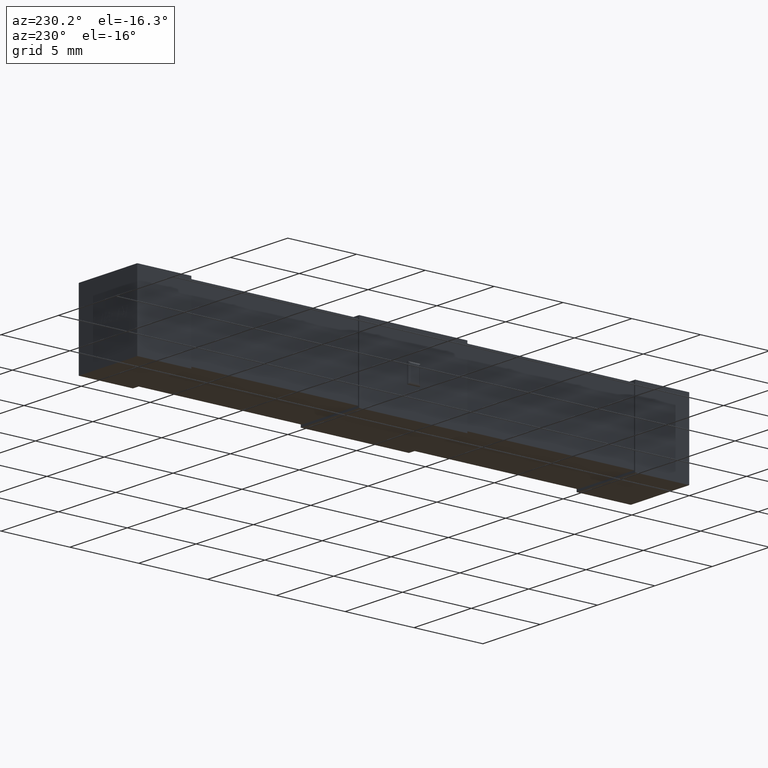
[diagram: clean part render]
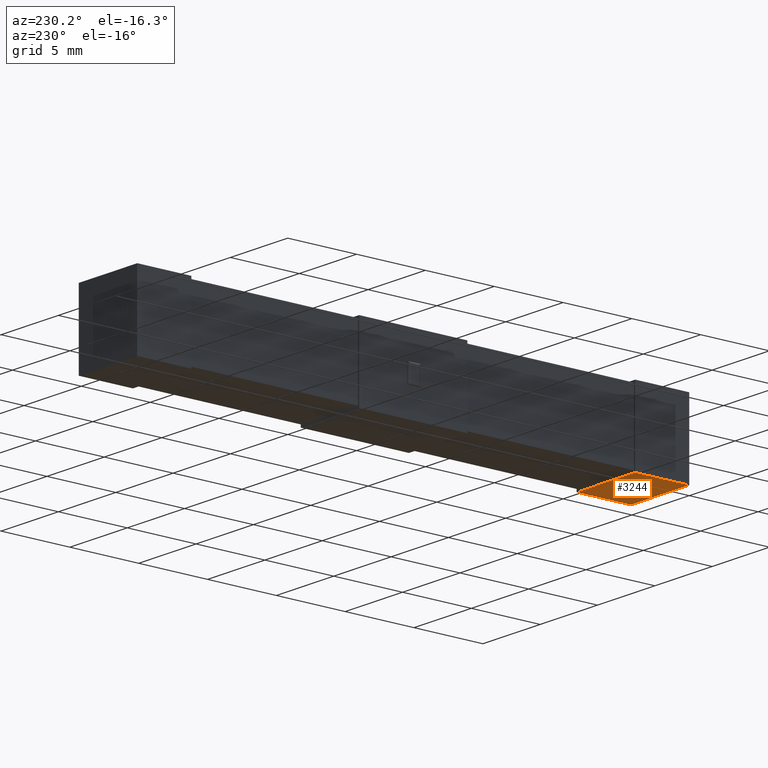
[diagram: same view with one face highlighted and labeled with its STEP entity id]
A machine part, auxiliary view. The second image highlights one B-rep face of the part: STEP entity #3244.
In plain terms, the highlighted planar face has unit normal (0, 0, -1).
Its self-contained STEP definition (entity closure, byte-faithful):
#1 = CARTESIAN_POINT ( 'NONE',  ( 0.000000000000000000, 0.000000000000000000, 0.000000000000000000 ) ) ;
#125 = LINE ( 'NONE', #1921, #2162 ) ;
#127 = ORIENTED_EDGE ( 'NONE', *, *, #664, .F. ) ;
#249 = EDGE_CURVE ( 'NONE', #1657, #2147, #3219, .T. ) ;
#404 = ORIENTED_EDGE ( 'NONE', *, *, #3091, .F. ) ;
#537 = VECTOR ( 'NONE', #2843, 1000.000000000000000 ) ;
#544 = CARTESIAN_POINT ( 'NONE',  ( 5.099999999999996980, 3.929799999999999738, 1.734723475976807094E-15 ) ) ;
#555 = CARTESIAN_POINT ( 'NONE',  ( 5.099999999999999645, 0.000000000000000000, 0.000000000000000000 ) ) ;
#664 = EDGE_CURVE ( 'NONE', #1657, #1699, #2777, .T. ) ;
#891 = DIRECTION ( 'NONE',  ( 1.000000000000000000, 0.000000000000000000, 0.000000000000000000 ) ) ;
#944 = FACE_OUTER_BOUND ( 'NONE', #2159, .T. ) ;
#951 = CARTESIAN_POINT ( 'NONE',  ( 4.429571965451960060E-15, 3.929799999999999738, 1.734723475976807094E-15 ) ) ;
#1051 = CARTESIAN_POINT ( 'NONE',  ( 0.000000000000000000, 0.000000000000000000, 0.000000000000000000 ) ) ;
#1147 = LINE ( 'NONE', #1857, #2020 ) ;
#1260 = AXIS2_PLACEMENT_3D ( 'NONE', #1, #3093, #3128 ) ;
#1357 = DIRECTION ( 'NONE',  ( 1.000000000000000000, 0.000000000000000000, 0.000000000000000000 ) ) ;
#1399 = DIRECTION ( 'NONE',  ( 0.000000000000000000, 1.000000000000000000, 0.000000000000000000 ) ) ;
#1504 = EDGE_CURVE ( 'NONE', #2666, #2147, #125, .T. ) ;
#1657 = VERTEX_POINT ( 'NONE', #951 ) ;
#1699 = VERTEX_POINT ( 'NONE', #1051 ) ;
#1773 = CARTESIAN_POINT ( 'NONE',  ( 0.000000000000000000, 0.000000000000000000, 0.000000000000000000 ) ) ;
#1857 = CARTESIAN_POINT ( 'NONE',  ( 0.000000000000000000, 0.000000000000000000, 0.000000000000000000 ) ) ;
#1921 = CARTESIAN_POINT ( 'NONE',  ( 5.099999999999999645, 0.000000000000000000, 0.000000000000000000 ) ) ;
#1994 = PLANE ( 'NONE',  #1260 ) ;
#2020 = VECTOR ( 'NONE', #1357, 1000.000000000000000 ) ;
#2026 = ORIENTED_EDGE ( 'NONE', *, *, #1504, .F. ) ;
#2067 = VECTOR ( 'NONE', #891, 1000.000000000000000 ) ;
#2147 = VERTEX_POINT ( 'NONE', #544 ) ;
#2159 = EDGE_LOOP ( 'NONE', ( #127, #2419, #2026, #404 ) ) ;
#2162 = VECTOR ( 'NONE', #1399, 1000.000000000000000 ) ;
#2419 = ORIENTED_EDGE ( 'NONE', *, *, #249, .T. ) ;
#2666 = VERTEX_POINT ( 'NONE', #555 ) ;
#2777 = LINE ( 'NONE', #1773, #537 ) ;
#2843 = DIRECTION ( 'NONE',  ( -0.000000000000000000, -1.000000000000000000, -0.000000000000000000 ) ) ;
#2977 = CARTESIAN_POINT ( 'NONE',  ( 4.429571965451960060E-15, 3.929799999999999738, 1.734723475976807094E-15 ) ) ;
#3091 = EDGE_CURVE ( 'NONE', #1699, #2666, #1147, .T. ) ;
#3093 = DIRECTION ( 'NONE',  ( 0.000000000000000000, 0.000000000000000000, -1.000000000000000000 ) ) ;
#3128 = DIRECTION ( 'NONE',  ( -1.000000000000000000, 0.000000000000000000, -0.000000000000000000 ) ) ;
#3219 = LINE ( 'NONE', #2977, #2067 ) ;
#3244 = ADVANCED_FACE ( 'NONE', ( #944 ), #1994, .T. ) ;